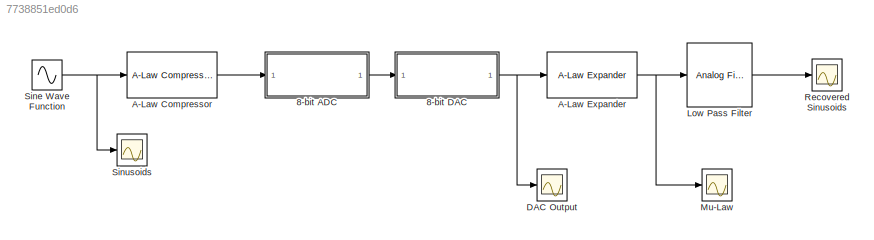
MODEL slx_7738851ed0d6
KIND model
CONFIG AbsTol = auto
CONFIG EnableMultiTasking = off
CONFIG FixedStep = auto
CONFIG MaxStep = auto
CONFIG MinStep = auto
CONFIG RelTol = 1e-3
CONFIG SampleTimeConstraint = Unconstrained
CONFIG Solver = VariableStepAuto
CONFIG SolverName = VariableStepAuto
CONFIG StartTime = 0.0
CONFIG StopTime = 0.1
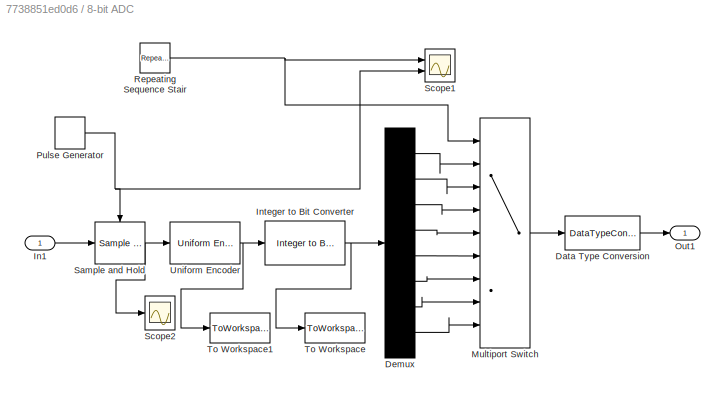
BLOCK [SubSystem] 8-bit ADC
  Ports = [1, 1]
  RequestExecContextInheritance = off
BLOCK [DataTypeConversion] 8-bit ADC/Data Type Conversion
  OutDataTypeStr = boolean
  RndMeth = Floor
  SaturateOnIntegerOverflow = off
BLOCK [Demux] 8-bit ADC/Demux
  DisplayOption = bar
  Outputs = 8
  Ports = [1, 8]
BLOCK [Inport] 8-bit ADC/In1
  IconDisplay = Port number
BLOCK [Reference] 8-bit ADC/Integer to Bit Converter  REF=commutil2/Integer to Bit
Converter
  Ports = [1, 1]
  SourceBlock = commutil2/Integer to Bit\nConverter
  SourceProductBaseCode = CM
  SourceProductName = Communications Toolbox
  SourceType = Integer to Bit Converter
BLOCK [MultiPortSwitch] 8-bit ADC/Multiport Switch
  InputSameDT = off
  Inputs = 8
  Ports = [9, 1]
  SaturateOnIntegerOverflow = off
BLOCK [Outport] 8-bit ADC/Out1
  IconDisplay = Port number
BLOCK [DiscretePulseGenerator] 8-bit ADC/Pulse Generator
  Period = 1/8000
  Ports = [0, 1]
  PulseType = Time based
  PulseWidth = 50
BLOCK [Reference] 8-bit ADC/Repeating Sequence Stair  REF=simulink/Sources/Repeating
Sequence
Stair
  Ports = [0, 1]
  SourceBlock = simulink/Sources/Repeating\nSequence\nStair
  SourceProductBaseCode = SL
  SourceProductName = Simulink
  SourceType = Repeating Sequence Stair
BLOCK [Reference] 8-bit ADC/Sample and Hold  REF=dspsigops/Sample
and Hold
  Ports = [1, 1, 0, 1]
  SourceBlock = dspsigops/Sample\nand Hold
  SourceProductBaseCode = DS
  SourceProductName = DSP System Toolbox
  SourceType = Sample and Hold
BLOCK [Scope] 8-bit ADC/Scope1
  Floating = off
  NumInputPorts = 2
  Ports = [2]
  ScopeSpecificationString = Simulink.scopes.TimeScopeBlockCfg('CurrentConfiguration', extmgr.ConfigurationSet(extmgr.Configuration('Core','General UI',true),extmgr.Configuration('Core','Source UI',true),extmgr.Configuration('Sources','WiredSimulink',true,'DataLoggingVariableName','ScopeData2'),extmgr.Configuration('Visuals','Time Domain',true,'SerializedDisplays',{struct('MinYLimReal','-1.00000','MaxYLimReal','9.00000','YLab...<+1427ch>
BLOCK [Scope] 8-bit ADC/Scope2
  Floating = off
  NumInputPorts = 1
  Ports = [1]
  ScopeSpecificationString = Simulink.scopes.TimeScopeBlockCfg('CurrentConfiguration', extmgr.ConfigurationSet(extmgr.Configuration('Core','General UI',true),extmgr.Configuration('Core','Source UI',true),extmgr.Configuration('Sources','WiredSimulink',true,'DataLoggingVariableName','ScopeData1'),extmgr.Configuration('Visuals','Time Domain',true,'SerializedDisplays',{struct('MinYLimReal','-1.25','MaxYLimReal','1.25','YLabelReal...<+1382ch>
BLOCK [ToWorkspace] 8-bit ADC/To Workspace
  FixptAsFi = on
  Ports = [1]
  SampleTime = -1
  SaveFormat = Timeseries
  VariableName = simout
BLOCK [ToWorkspace] 8-bit ADC/To Workspace1
  FixptAsFi = on
  Ports = [1]
  SampleTime = -1
  SaveFormat = Timeseries
  VariableName = simout1
BLOCK [Reference] 8-bit ADC/Uniform Encoder  REF=dspquant2/Uniform
Encoder
  Ports = [1, 1]
  SourceBlock = dspquant2/Uniform\nEncoder
  SourceProductBaseCode = DS
  SourceProductName = DSP System Toolbox
  SourceType = Uniform Encoder
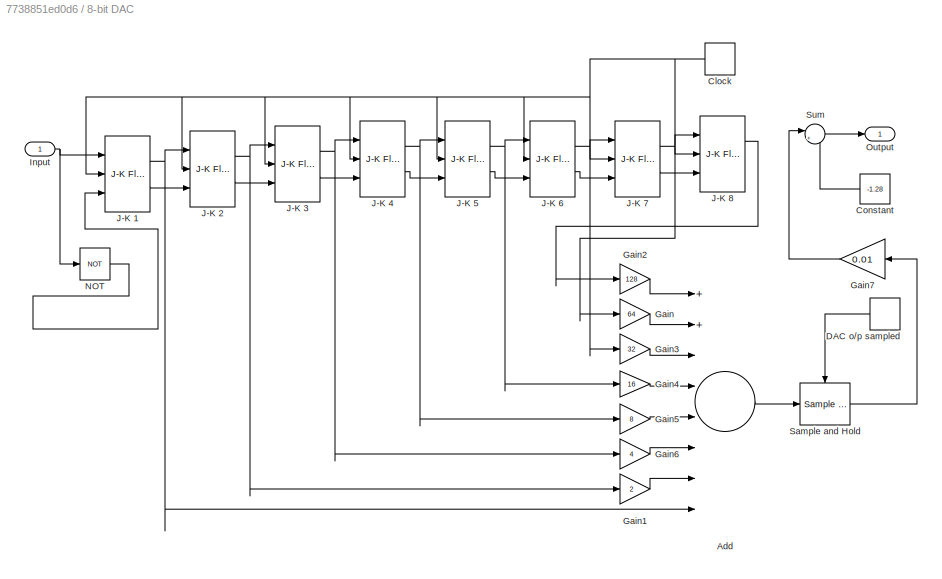
BLOCK [SubSystem] 8-bit DAC
  Ports = [1, 1]
  RequestExecContextInheritance = off
BLOCK [Sum] 8-bit DAC/Add
  InputSameDT = off
  Inputs = 8
  OutDataTypeStr = Inherit: Inherit via internal rule
  Ports = [8, 1]
  SaturateOnIntegerOverflow = off
BLOCK [DiscretePulseGenerator] 8-bit DAC/Clock
  Period = 1/64000
  Ports = [0, 1]
  PulseType = Time based
  PulseWidth = 50
BLOCK [Constant] 8-bit DAC/Constant
  Value = -1.28
BLOCK [DiscretePulseGenerator] 8-bit DAC/DAC o//p sampled
  Period = 1/8000
  Ports = [0, 1]
  PulseType = Time based
  PulseWidth = 50
BLOCK [Gain] 8-bit DAC/Gain
  Gain = 64
  OutDataTypeStr = Inherit: Inherit via internal rule
  ParamDataTypeStr = Inherit: Inherit via internal rule
  SaturateOnIntegerOverflow = off
BLOCK [Gain] 8-bit DAC/Gain1
  Gain = 2
  OutDataTypeStr = Inherit: Inherit via internal rule
  ParamDataTypeStr = Inherit: Inherit via internal rule
  SaturateOnIntegerOverflow = off
BLOCK [Gain] 8-bit DAC/Gain2
  Gain = 128
  OutDataTypeStr = Inherit: Inherit via internal rule
  ParamDataTypeStr = Inherit: Inherit via internal rule
  SaturateOnIntegerOverflow = off
BLOCK [Gain] 8-bit DAC/Gain3
  Gain = 32
  OutDataTypeStr = Inherit: Inherit via internal rule
  ParamDataTypeStr = Inherit: Inherit via internal rule
  SaturateOnIntegerOverflow = off
BLOCK [Gain] 8-bit DAC/Gain4
  Gain = 16
  OutDataTypeStr = Inherit: Inherit via internal rule
  ParamDataTypeStr = Inherit: Inherit via internal rule
  SaturateOnIntegerOverflow = off
BLOCK [Gain] 8-bit DAC/Gain5
  Gain = 8
  OutDataTypeStr = Inherit: Inherit via internal rule
  ParamDataTypeStr = Inherit: Inherit via internal rule
  SaturateOnIntegerOverflow = off
BLOCK [Gain] 8-bit DAC/Gain6
  Gain = 4
  OutDataTypeStr = Inherit: Inherit via internal rule
  ParamDataTypeStr = Inherit: Inherit via internal rule
  SaturateOnIntegerOverflow = off
BLOCK [Gain] 8-bit DAC/Gain7
  Gain = 0.01
  OutDataTypeStr = Inherit: Inherit via internal rule
  ParamDataTypeStr = Inherit: Inherit via internal rule
  SaturateOnIntegerOverflow = off
BLOCK [Inport] 8-bit DAC/Input
  IconDisplay = Port number
BLOCK [Reference] 8-bit DAC/J-K 1  REF=simulink_extras/Flip Flops/J-K
Flip-Flop
  Ports = [3, 2]
  SourceBlock = simulink_extras/Flip Flops/J-K\nFlip-Flop
  SourceProductBaseCode = SL
  SourceProductName = Simulink
  SourceType = JKFlipFlop
BLOCK [Reference] 8-bit DAC/J-K 2  REF=simulink_extras/Flip Flops/J-K
Flip-Flop
  Ports = [3, 2]
  SourceBlock = simulink_extras/Flip Flops/J-K\nFlip-Flop
  SourceProductBaseCode = SL
  SourceProductName = Simulink
  SourceType = JKFlipFlop
BLOCK [Reference] 8-bit DAC/J-K 3  REF=simulink_extras/Flip Flops/J-K
Flip-Flop
  Ports = [3, 2]
  SourceBlock = simulink_extras/Flip Flops/J-K\nFlip-Flop
  SourceProductBaseCode = SL
  SourceProductName = Simulink
  SourceType = JKFlipFlop
BLOCK [Reference] 8-bit DAC/J-K 4  REF=simulink_extras/Flip Flops/J-K
Flip-Flop
  Ports = [3, 2]
  SourceBlock = simulink_extras/Flip Flops/J-K\nFlip-Flop
  SourceProductBaseCode = SL
  SourceProductName = Simulink
  SourceType = JKFlipFlop
BLOCK [Reference] 8-bit DAC/J-K 5  REF=simulink_extras/Flip Flops/J-K
Flip-Flop
  Ports = [3, 2]
  SourceBlock = simulink_extras/Flip Flops/J-K\nFlip-Flop
  SourceProductBaseCode = SL
  SourceProductName = Simulink
  SourceType = JKFlipFlop
BLOCK [Reference] 8-bit DAC/J-K 6  REF=simulink_extras/Flip Flops/J-K
Flip-Flop
  Ports = [3, 2]
  SourceBlock = simulink_extras/Flip Flops/J-K\nFlip-Flop
  SourceProductBaseCode = SL
  SourceProductName = Simulink
  SourceType = JKFlipFlop
BLOCK [Reference] 8-bit DAC/J-K 7  REF=simulink_extras/Flip Flops/J-K
Flip-Flop
  Ports = [3, 2]
  SourceBlock = simulink_extras/Flip Flops/J-K\nFlip-Flop
  SourceProductBaseCode = SL
  SourceProductName = Simulink
  SourceType = JKFlipFlop
BLOCK [Reference] 8-bit DAC/J-K 8  REF=simulink_extras/Flip Flops/J-K
Flip-Flop
  Ports = [3, 2]
  SourceBlock = simulink_extras/Flip Flops/J-K\nFlip-Flop
  SourceProductBaseCode = SL
  SourceProductName = Simulink
  SourceType = JKFlipFlop
BLOCK [Logic] 8-bit DAC/NOT
  AllPortsSameDT = off
  IconShape = distinctive
  Operator = NOT
  OutDataTypeStr = boolean
  Ports = [1, 1]
BLOCK [Outport] 8-bit DAC/Output
  IconDisplay = Port number
BLOCK [Reference] 8-bit DAC/Sample and Hold  REF=dspsigops/Sample
and Hold
  Ports = [1, 1, 0, 1]
  SourceBlock = dspsigops/Sample\nand Hold
  SourceProductBaseCode = DS
  SourceProductName = DSP System Toolbox
  SourceType = Sample and Hold
BLOCK [Sum] 8-bit DAC/Sum
  IconShape = round
  InputSameDT = off
  Inputs = |++
  OutDataTypeStr = Inherit: Inherit via internal rule
  Ports = [2, 1]
  SaturateOnIntegerOverflow = off
BLOCK [Reference] A-Law Compressor  REF=commsrccod2/A-Law
Compressor
  Ports = [1, 1]
  SourceBlock = commsrccod2/A-Law\nCompressor
  SourceProductBaseCode = CM
  SourceProductName = Communications Toolbox
  SourceType = A-Law Compressor
BLOCK [Reference] A-Law Expander  REF=commsrccod2/A-Law
Expander
  Ports = [1, 1]
  SourceBlock = commsrccod2/A-Law\nExpander
  SourceProductBaseCode = CM
  SourceProductName = Communications Toolbox
  SourceType = A-Law Expander
BLOCK [Scope] DAC Output
  Floating = off
  NumInputPorts = 1
  Ports = [1]
  ScopeSpecificationString = Simulink.scopes.TimeScopeBlockCfg('CurrentConfiguration', extmgr.ConfigurationSet(extmgr.Configuration('Core','General UI',true),extmgr.Configuration('Core','Source UI',true),extmgr.Configuration('Sources','WiredSimulink',true,'DataLoggingVariableName','ScopeData1'),extmgr.Configuration('Visuals','Time Domain',true,'SerializedDisplays',{struct('MinYLimReal','-1.56278','MaxYLimReal','1.26498','YLab...<+1394ch>
BLOCK [Reference] Low Pass Filter  REF=dsparch4/Analog
Filter Design
  Ports = [1, 1]
  SourceBlock = dsparch4/Analog\nFilter Design
  SourceProductBaseCode = DS
  SourceProductName = DSP System Toolbox
  SourceType = Analog Filter Design
BLOCK [Scope] Mu-Law
  Floating = off
  NumInputPorts = 1
  Ports = [1]
  ScopeSpecificationString = Simulink.scopes.TimeScopeBlockCfg('CurrentConfiguration', extmgr.ConfigurationSet(extmgr.Configuration('Core','General UI',true),extmgr.Configuration('Core','Source UI',true),extmgr.Configuration('Sources','WiredSimulink',true,'DataLoggingVariableName','ScopeData2'),extmgr.Configuration('Visuals','Time Domain',true,'SerializedDisplays',{struct('MinYLimReal','-5.32122','MaxYLimReal','1.59926','YLab...<+1399ch>
BLOCK [Scope] Recovered Sinusoids
  Floating = off
  NumInputPorts = 1
  Ports = [1]
  ScopeSpecificationString = Simulink.scopes.TimeScopeBlockCfg('CurrentConfiguration', extmgr.ConfigurationSet(extmgr.Configuration('Core','General UI',true),extmgr.Configuration('Core','Source UI',true),extmgr.Configuration('Sources','WiredSimulink',true,'DataLoggingVariableName','ScopeData3'),extmgr.Configuration('Visuals','Time Domain',true,'SerializedDisplays',{struct('MinYLimReal','-1.13343','MaxYLimReal','1.10774','YLab...<+1400ch>
BLOCK [Sin] Sine Wave Function
  Frequency = 2*pi*300
  Ports = [0, 1]
  SampleTime = 0
BLOCK [Scope] Sinusoids 
  Floating = off
  NumInputPorts = 1
  Ports = [1]
  ScopeSpecificationString = Simulink.scopes.TimeScopeBlockCfg('CurrentConfiguration', extmgr.ConfigurationSet(extmgr.Configuration('Core','General UI',true),extmgr.Configuration('Core','Source UI',true),extmgr.Configuration('Sources','WiredSimulink',true),extmgr.Configuration('Visuals','Time Domain',true,'SerializedDisplays',{struct('MinYLimReal','-1.25','MaxYLimReal','1.25','YLabelReal','','MinYLimMag','0.00000','MaxYLimMag...<+1346ch>
LINE 8-bit ADC/Data Type Conversion:1 -> 8-bit ADC/Out1:1
LINE 8-bit ADC/Demux:1 -> 8-bit ADC/Multiport Switch:2
LINE 8-bit ADC/Demux:2 -> 8-bit ADC/Multiport Switch:3
LINE 8-bit ADC/Demux:3 -> 8-bit ADC/Multiport Switch:4
LINE 8-bit ADC/Demux:4 -> 8-bit ADC/Multiport Switch:5
LINE 8-bit ADC/Demux:5 -> 8-bit ADC/Multiport Switch:6
LINE 8-bit ADC/Demux:6 -> 8-bit ADC/Multiport Switch:7
LINE 8-bit ADC/Demux:7 -> 8-bit ADC/Multiport Switch:8
LINE 8-bit ADC/Demux:8 -> 8-bit ADC/Multiport Switch:9
LINE 8-bit ADC/In1:1 -> 8-bit ADC/Sample and Hold:1
NET 8-bit ADC/Integer to Bit Converter:1 -> 8-bit ADC/Demux:1, 8-bit ADC/To Workspace:1
LINE 8-bit ADC/Multiport Switch:1 -> 8-bit ADC/Data Type Conversion:1
NET 8-bit ADC/Pulse Generator:1 -> 8-bit ADC/Sample and Hold:trigger, 8-bit ADC/Scope1:2
NET 8-bit ADC/Repeating Sequence Stair:1 -> 8-bit ADC/Multiport Switch:1, 8-bit ADC/Scope1:1
NET 8-bit ADC/Sample and Hold:1 -> 8-bit ADC/Scope2:1, 8-bit ADC/Uniform Encoder:1
NET 8-bit ADC/Uniform Encoder:1 -> 8-bit ADC/Integer to Bit Converter:1, 8-bit ADC/To Workspace1:1
LINE 8-bit ADC:1 -> 8-bit DAC:1
LINE 8-bit DAC/Add:1 -> 8-bit DAC/Sample and Hold:1
NET 8-bit DAC/Clock:1 -> 8-bit DAC/J-K 1:2, 8-bit DAC/J-K 2:2, 8-bit DAC/J-K 3:2, 8-bit DAC/J-K 4:2, 8-bit DAC/J-K 5:2, 8-bit DAC/J-K 6:2, 8-bit DAC/J-K 7:2, 8-bit DAC/J-K 8:2
LINE 8-bit DAC/Constant:1 -> 8-bit DAC/Sum:2
LINE 8-bit DAC/DAC o//p sampled:1 -> 8-bit DAC/Sample and Hold:trigger
LINE 8-bit DAC/Gain1:1 -> 8-bit DAC/Add:7
LINE 8-bit DAC/Gain2:1 -> 8-bit DAC/Add:1
LINE 8-bit DAC/Gain3:1 -> 8-bit DAC/Add:3
LINE 8-bit DAC/Gain4:1 -> 8-bit DAC/Add:4
LINE 8-bit DAC/Gain5:1 -> 8-bit DAC/Add:5
LINE 8-bit DAC/Gain6:1 -> 8-bit DAC/Add:6
LINE 8-bit DAC/Gain7:1 -> 8-bit DAC/Sum:1
LINE 8-bit DAC/Gain:1 -> 8-bit DAC/Add:2
NET 8-bit DAC/Input:1 -> 8-bit DAC/J-K 1:1, 8-bit DAC/NOT:1
NET 8-bit DAC/J-K 1:1 -> 8-bit DAC/Add:8, 8-bit DAC/J-K 2:1
LINE 8-bit DAC/J-K 1:2 -> 8-bit DAC/J-K 2:3
NET 8-bit DAC/J-K 2:1 -> 8-bit DAC/Gain1:1, 8-bit DAC/J-K 3:1
LINE 8-bit DAC/J-K 2:2 -> 8-bit DAC/J-K 3:3
NET 8-bit DAC/J-K 3:1 -> 8-bit DAC/Gain6:1, 8-bit DAC/J-K 4:1
LINE 8-bit DAC/J-K 3:2 -> 8-bit DAC/J-K 4:3
NET 8-bit DAC/J-K 4:1 -> 8-bit DAC/Gain5:1, 8-bit DAC/J-K 5:1
LINE 8-bit DAC/J-K 4:2 -> 8-bit DAC/J-K 5:3
NET 8-bit DAC/J-K 5:1 -> 8-bit DAC/Gain4:1, 8-bit DAC/J-K 6:1
LINE 8-bit DAC/J-K 5:2 -> 8-bit DAC/J-K 6:3
NET 8-bit DAC/J-K 6:1 -> 8-bit DAC/Gain3:1, 8-bit DAC/J-K 7:1
LINE 8-bit DAC/J-K 6:2 -> 8-bit DAC/J-K 7:3
NET 8-bit DAC/J-K 7:1 -> 8-bit DAC/Gain:1, 8-bit DAC/J-K 8:1
LINE 8-bit DAC/J-K 7:2 -> 8-bit DAC/J-K 8:3
LINE 8-bit DAC/J-K 8:1 -> 8-bit DAC/Gain2:1
LINE 8-bit DAC/NOT:1 -> 8-bit DAC/J-K 1:3
LINE 8-bit DAC/Sample and Hold:1 -> 8-bit DAC/Gain7:1
LINE 8-bit DAC/Sum:1 -> 8-bit DAC/Output:1
NET 8-bit DAC:1 -> A-Law Expander:1, DAC Output:1
LINE A-Law Compressor:1 -> 8-bit ADC:1
NET A-Law Expander:1 -> Low Pass Filter:1, Mu-Law:1
LINE Low Pass Filter:1 -> Recovered Sinusoids:1
NET Sine Wave Function:1 -> A-Law Compressor:1, Sinusoids :1
note: NET lines group one-source signal fan-out (src -> all destinations, sorted); 1:1 wires keep LINE
